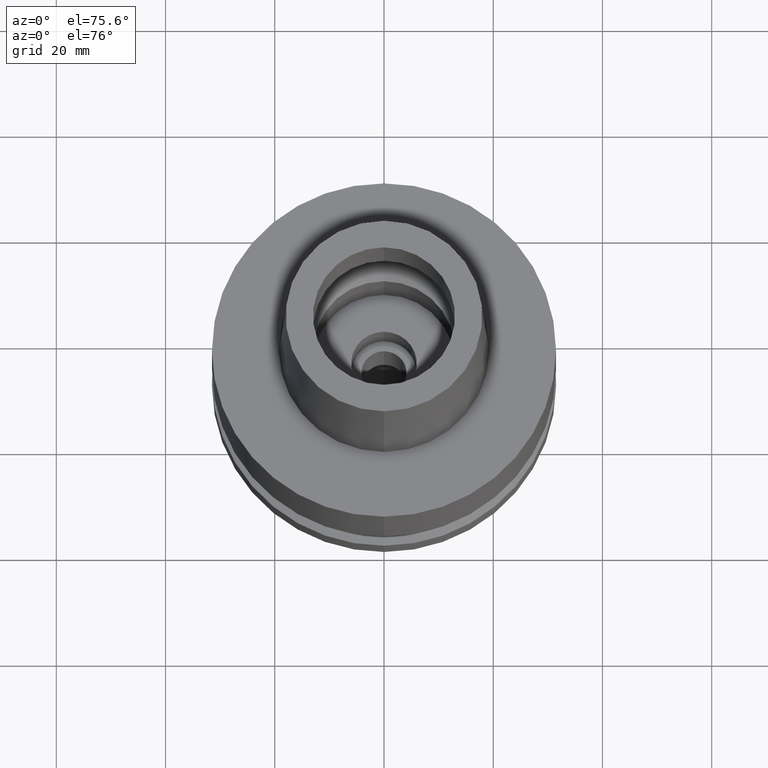
[diagram: clean part render]
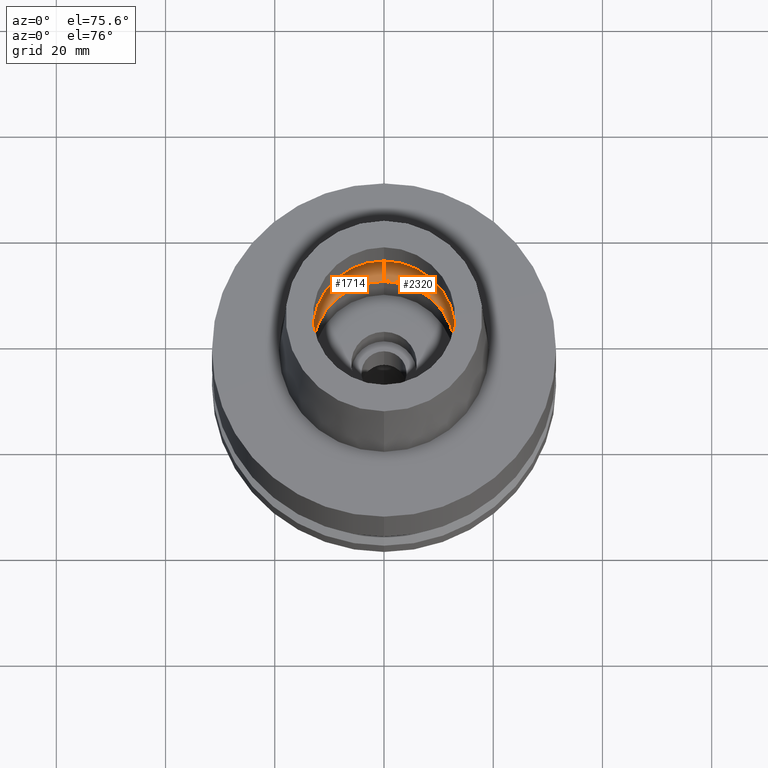
[diagram: same view with one multi-face feature highlighted, each face labeled with its STEP entity id]
A machine part, auxiliary view. The highlighted faces form ONE feature: a constant-radius fillet chain: 2 tangent blend faces with common blend radius 6 mm. The faces share edges in the B-rep.
Their STEP definitions:
[1] entity #1714 (Torus):
#77 = CARTESIAN_POINT ( 'NONE',  ( 0.0000000000000000000, 13.00000000000000000, 0.04984757729342999960 ) ) ;
#111 = AXIS2_PLACEMENT_3D ( 'NONE', #1378, #289, #1778 ) ;
#156 = CIRCLE ( 'NONE', #111, 16.00000000000000000 ) ;
#184 = AXIS2_PLACEMENT_3D ( 'NONE', #2064, #2096, #2270 ) ;
#224 = VERTEX_POINT ( 'NONE', #77 ) ;
#289 = DIRECTION ( 'NONE',  ( 0.0000000000000000000, 0.0000000000000000000, -1.000000000000000000 ) ) ;
#353 = CARTESIAN_POINT ( 'NONE',  ( 0.0000000000000000000, -16.00000000000000000, 5.245999999999999552 ) ) ;
#388 = AXIS2_PLACEMENT_3D ( 'NONE', #1557, #1787, #1330 ) ;
#467 = CARTESIAN_POINT ( 'NONE',  ( 0.0000000000000000000, -13.00000000000000000, 0.04984757729338000487 ) ) ;
#576 = CARTESIAN_POINT ( 'NONE',  ( 0.0000000000000000000, 0.0000000000000000000, 5.245999999999999552 ) ) ;
#752 = EDGE_CURVE ( 'NONE', #1047, #1770, #156, .T. ) ;
#769 = VERTEX_POINT ( 'NONE', #467 ) ;
#775 = CARTESIAN_POINT ( 'NONE',  ( 0.0000000000000000000, 16.00000000000000000, 5.245999999999999552 ) ) ;
#834 = CIRCLE ( 'NONE', #184, 6.000000000000000000 ) ;
#948 = EDGE_CURVE ( 'NONE', #224, #769, #2259, .T. ) ;
#1047 = VERTEX_POINT ( 'NONE', #353 ) ;
#1211 = DIRECTION ( 'NONE',  ( 0.0000000000000000000, 0.0000000000000000000, 1.000000000000000000 ) ) ;
#1221 = EDGE_CURVE ( 'NONE', #769, #1047, #1570, .T. ) ;
#1273 = ORIENTED_EDGE ( 'NONE', *, *, #752, .F. ) ;
#1330 = DIRECTION ( 'NONE',  ( 0.0000000000000000000, -0.5000000000000169864, -0.8660254037844289376 ) ) ;
#1378 = CARTESIAN_POINT ( 'NONE',  ( 0.0000000000000000000, 0.0000000000000000000, 5.245999999999999552 ) ) ;
#1381 = ORIENTED_EDGE ( 'NONE', *, *, #948, .F. ) ;
#1412 = AXIS2_PLACEMENT_3D ( 'NONE', #1423, #2715, #2742 ) ;
#1423 = CARTESIAN_POINT ( 'NONE',  ( 0.0000000000000000000, 0.0000000000000000000, 0.04984757729338000487 ) ) ;
#1460 = EDGE_LOOP ( 'NONE', ( #1273, #2238, #1381, #2541 ) ) ;
#1557 = CARTESIAN_POINT ( 'NONE',  ( 0.0000000000000000000, -10.00000000000000000, 5.245999999999999552 ) ) ;
#1570 = CIRCLE ( 'NONE', #388, 6.000000000000000000 ) ;
#1714 = ADVANCED_FACE ( 'NONE', ( #2487 ), #2057, .F. ) ;
#1753 = EDGE_CURVE ( 'NONE', #224, #1770, #834, .T. ) ;
#1770 = VERTEX_POINT ( 'NONE', #775 ) ;
#1778 = DIRECTION ( 'NONE',  ( 0.0000000000000000000, -1.000000000000000000, 0.0000000000000000000 ) ) ;
#1787 = DIRECTION ( 'NONE',  ( -1.000000000000000000, 0.0000000000000000000, 0.0000000000000000000 ) ) ;
#1836 = DIRECTION ( 'NONE',  ( 0.0000000000000000000, 1.000000000000000000, 0.0000000000000000000 ) ) ;
#1846 = AXIS2_PLACEMENT_3D ( 'NONE', #576, #1211, #1836 ) ;
#2057 = TOROIDAL_SURFACE ( 'NONE', #1846, 10.00000000000000000, 6.000000000000000000 ) ;
#2064 = CARTESIAN_POINT ( 'NONE',  ( 0.0000000000000000000, 10.00000000000000000, 5.245999999999999552 ) ) ;
#2096 = DIRECTION ( 'NONE',  ( 1.000000000000000000, 0.0000000000000000000, 0.0000000000000000000 ) ) ;
#2238 = ORIENTED_EDGE ( 'NONE', *, *, #1221, .F. ) ;
#2259 = CIRCLE ( 'NONE', #1412, 13.00000000000000000 ) ;
#2270 = DIRECTION ( 'NONE',  ( 0.0000000000000000000, 0.5000000000000169864, -0.8660254037844289376 ) ) ;
#2487 = FACE_OUTER_BOUND ( 'NONE', #1460, .T. ) ;
#2541 = ORIENTED_EDGE ( 'NONE', *, *, #1753, .T. ) ;
#2715 = DIRECTION ( 'NONE',  ( 0.0000000000000000000, 0.0000000000000000000, 1.000000000000000000 ) ) ;
#2742 = DIRECTION ( 'NONE',  ( 0.0000000000000000000, 1.000000000000000000, 0.0000000000000000000 ) ) ;
[2] entity #2320 (Torus):
#43 = AXIS2_PLACEMENT_3D ( 'NONE', #756, #1635, #2312 ) ;
#77 = CARTESIAN_POINT ( 'NONE',  ( 0.0000000000000000000, 13.00000000000000000, 0.04984757729342999960 ) ) ;
#169 = EDGE_CURVE ( 'NONE', #769, #224, #402, .T. ) ;
#184 = AXIS2_PLACEMENT_3D ( 'NONE', #2064, #2096, #2270 ) ;
#224 = VERTEX_POINT ( 'NONE', #77 ) ;
#343 = CIRCLE ( 'NONE', #428, 16.00000000000000000 ) ;
#353 = CARTESIAN_POINT ( 'NONE',  ( 0.0000000000000000000, -16.00000000000000000, 5.245999999999999552 ) ) ;
#388 = AXIS2_PLACEMENT_3D ( 'NONE', #1557, #1787, #1330 ) ;
#402 = CIRCLE ( 'NONE', #2115, 13.00000000000000000 ) ;
#407 = ORIENTED_EDGE ( 'NONE', *, *, #169, .F. ) ;
#409 = CARTESIAN_POINT ( 'NONE',  ( 0.0000000000000000000, 0.0000000000000000000, 5.245999999999999552 ) ) ;
#428 = AXIS2_PLACEMENT_3D ( 'NONE', #409, #2136, #1955 ) ;
#443 = ORIENTED_EDGE ( 'NONE', *, *, #1753, .F. ) ;
#467 = CARTESIAN_POINT ( 'NONE',  ( 0.0000000000000000000, -13.00000000000000000, 0.04984757729338000487 ) ) ;
#655 = DIRECTION ( 'NONE',  ( 0.0000000000000000000, 0.0000000000000000000, 1.000000000000000000 ) ) ;
#756 = CARTESIAN_POINT ( 'NONE',  ( 0.0000000000000000000, 0.0000000000000000000, 5.245999999999999552 ) ) ;
#769 = VERTEX_POINT ( 'NONE', #467 ) ;
#775 = CARTESIAN_POINT ( 'NONE',  ( 0.0000000000000000000, 16.00000000000000000, 5.245999999999999552 ) ) ;
#834 = CIRCLE ( 'NONE', #184, 6.000000000000000000 ) ;
#1047 = VERTEX_POINT ( 'NONE', #353 ) ;
#1072 = ORIENTED_EDGE ( 'NONE', *, *, #1143, .F. ) ;
#1143 = EDGE_CURVE ( 'NONE', #1770, #1047, #343, .T. ) ;
#1221 = EDGE_CURVE ( 'NONE', #769, #1047, #1570, .T. ) ;
#1328 = CARTESIAN_POINT ( 'NONE',  ( 0.0000000000000000000, 0.0000000000000000000, 0.04984757729338000487 ) ) ;
#1330 = DIRECTION ( 'NONE',  ( 0.0000000000000000000, -0.5000000000000169864, -0.8660254037844289376 ) ) ;
#1557 = CARTESIAN_POINT ( 'NONE',  ( 0.0000000000000000000, -10.00000000000000000, 5.245999999999999552 ) ) ;
#1570 = CIRCLE ( 'NONE', #388, 6.000000000000000000 ) ;
#1635 = DIRECTION ( 'NONE',  ( 0.0000000000000000000, 0.0000000000000000000, 1.000000000000000000 ) ) ;
#1753 = EDGE_CURVE ( 'NONE', #224, #1770, #834, .T. ) ;
#1770 = VERTEX_POINT ( 'NONE', #775 ) ;
#1787 = DIRECTION ( 'NONE',  ( -1.000000000000000000, 0.0000000000000000000, 0.0000000000000000000 ) ) ;
#1831 = ORIENTED_EDGE ( 'NONE', *, *, #1221, .T. ) ;
#1955 = DIRECTION ( 'NONE',  ( 0.0000000000000000000, 1.000000000000000000, 0.0000000000000000000 ) ) ;
#2064 = CARTESIAN_POINT ( 'NONE',  ( 0.0000000000000000000, 10.00000000000000000, 5.245999999999999552 ) ) ;
#2096 = DIRECTION ( 'NONE',  ( 1.000000000000000000, 0.0000000000000000000, 0.0000000000000000000 ) ) ;
#2115 = AXIS2_PLACEMENT_3D ( 'NONE', #1328, #655, #2660 ) ;
#2136 = DIRECTION ( 'NONE',  ( 0.0000000000000000000, 0.0000000000000000000, -1.000000000000000000 ) ) ;
#2270 = DIRECTION ( 'NONE',  ( 0.0000000000000000000, 0.5000000000000169864, -0.8660254037844289376 ) ) ;
#2312 = DIRECTION ( 'NONE',  ( 0.0000000000000000000, 1.000000000000000000, 0.0000000000000000000 ) ) ;
#2320 = ADVANCED_FACE ( 'NONE', ( #2481 ), #2380, .F. ) ;
#2380 = TOROIDAL_SURFACE ( 'NONE', #43, 10.00000000000000000, 6.000000000000000000 ) ;
#2481 = FACE_OUTER_BOUND ( 'NONE', #2540, .T. ) ;
#2540 = EDGE_LOOP ( 'NONE', ( #407, #1831, #1072, #443 ) ) ;
#2660 = DIRECTION ( 'NONE',  ( 0.0000000000000000000, -1.000000000000000000, 0.0000000000000000000 ) ) ;